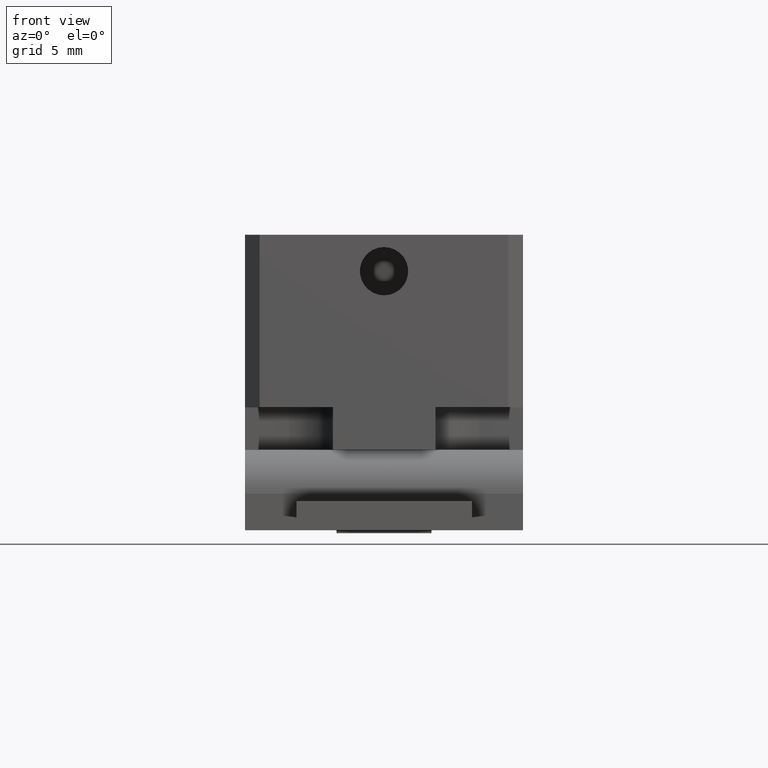
[diagram: clean part render]
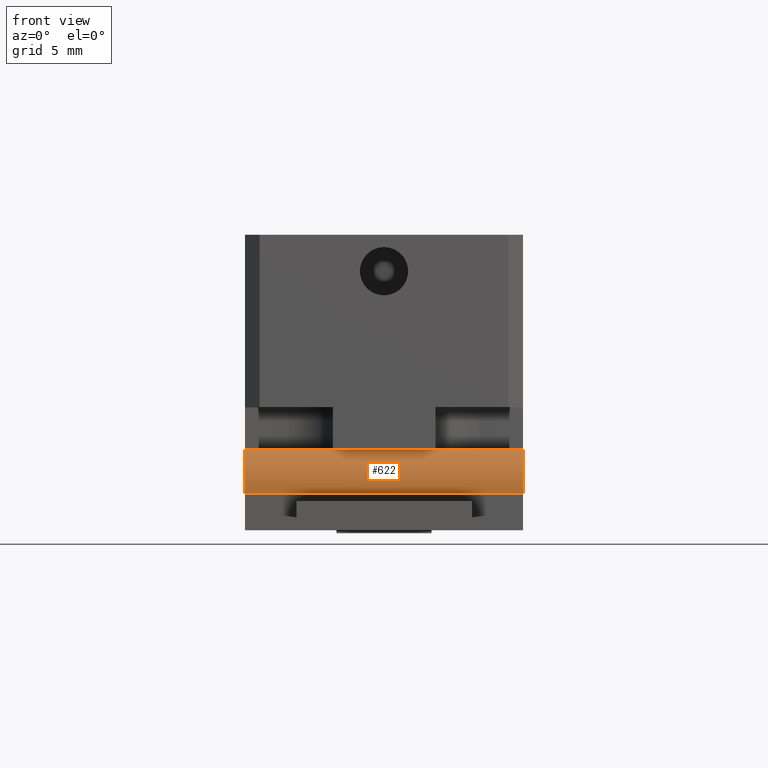
[diagram: same view with one face highlighted and labeled with its STEP entity id]
A machine part, front view. The second image highlights one B-rep face of the part: STEP entity #622.
In plain terms, the highlighted cylindrical surface (partial cylindrical patch) has radius 3 mm, axis along (-1, 0, -0).
Its self-contained STEP definition (entity closure, byte-faithful):
#321 = CIRCLE ( 'NONE', #4031, 2.999999999999999100 ) ;
#354 = VERTEX_POINT ( 'NONE', #2172 ) ;
#357 = CARTESIAN_POINT ( 'NONE',  ( 4.593946590009585900, -10.54697329500457300, 19.70000000000000600 ) ) ;
#362 = EDGE_CURVE ( 'NONE', #4016, #354, #2501, .T. ) ;
#517 = CARTESIAN_POINT ( 'NONE',  ( -14.40605340999041500, -10.54697329500457300, 19.70000000000000600 ) ) ;
#533 = FACE_OUTER_BOUND ( 'NONE', #1401, .T. ) ;
#622 = ADVANCED_FACE ( 'NONE', ( #533 ), #2202, .T. ) ;
#671 = DIRECTION ( 'NONE',  ( -2.891205793294678300E-016, 1.000000000000000000, 0.0000000000000000000 ) ) ;
#760 = DIRECTION ( 'NONE',  ( 0.0000000000000000000, 0.0000000000000000000, 1.000000000000000000 ) ) ;
#840 = DIRECTION ( 'NONE',  ( 0.0000000000000000000, 0.0000000000000000000, -1.000000000000000000 ) ) ;
#876 = CARTESIAN_POINT ( 'NONE',  ( 4.593946590009585900, -10.54697329500457300, 22.70000000000000600 ) ) ;
#1157 = DIRECTION ( 'NONE',  ( -1.000000000000000000, 0.0000000000000000000, -0.0000000000000000000 ) ) ;
#1401 = EDGE_LOOP ( 'NONE', ( #1679, #3311, #1789, #3804 ) ) ;
#1466 = AXIS2_PLACEMENT_3D ( 'NONE', #2434, #2767, #760 ) ;
#1679 = ORIENTED_EDGE ( 'NONE', *, *, #1951, .F. ) ;
#1765 = EDGE_CURVE ( 'NONE', #1905, #4085, #4026, .T. ) ;
#1789 = ORIENTED_EDGE ( 'NONE', *, *, #3500, .F. ) ;
#1869 = CARTESIAN_POINT ( 'NONE',  ( 4.593946590009585900, -10.54697329500457300, 22.70000000000000600 ) ) ;
#1905 = VERTEX_POINT ( 'NONE', #3454 ) ;
#1951 = EDGE_CURVE ( 'NONE', #354, #1905, #321, .T. ) ;
#2172 = CARTESIAN_POINT ( 'NONE',  ( -14.40605340999041500, -13.54697329500457300, 19.70000000000000600 ) ) ;
#2202 = CYLINDRICAL_SURFACE ( 'NONE', #1466, 2.999999999999999100 ) ;
#2207 = DIRECTION ( 'NONE',  ( 1.000000000000000000, -0.0000000000000000000, 0.0000000000000000000 ) ) ;
#2286 = VECTOR ( 'NONE', #2207, 1000.000000000000000 ) ;
#2389 = CIRCLE ( 'NONE', #3542, 3.000000000000000000 ) ;
#2434 = CARTESIAN_POINT ( 'NONE',  ( -4.906053409990408700, -10.54697329500457300, 19.70000000000000600 ) ) ;
#2501 = LINE ( 'NONE', #2833, #4152 ) ;
#2676 = DIRECTION ( 'NONE',  ( 1.000000000000000000, 2.891205793294677800E-016, -0.0000000000000000000 ) ) ;
#2767 = DIRECTION ( 'NONE',  ( -1.000000000000000000, 0.0000000000000000000, -0.0000000000000000000 ) ) ;
#2833 = CARTESIAN_POINT ( 'NONE',  ( -14.40605340999041500, -13.54697329500457300, 19.70000000000000600 ) ) ;
#2843 = DIRECTION ( 'NONE',  ( -1.000000000000000000, -0.0000000000000000000, 0.0000000000000000000 ) ) ;
#3311 = ORIENTED_EDGE ( 'NONE', *, *, #362, .F. ) ;
#3454 = CARTESIAN_POINT ( 'NONE',  ( -14.40605340999041500, -10.54697329500457300, 22.70000000000000600 ) ) ;
#3500 = EDGE_CURVE ( 'NONE', #4085, #4016, #2389, .T. ) ;
#3542 = AXIS2_PLACEMENT_3D ( 'NONE', #357, #2676, #671 ) ;
#3804 = ORIENTED_EDGE ( 'NONE', *, *, #1765, .F. ) ;
#3806 = CARTESIAN_POINT ( 'NONE',  ( 4.593946590009585900, -13.54697329500457300, 19.70000000000000600 ) ) ;
#4016 = VERTEX_POINT ( 'NONE', #3806 ) ;
#4026 = LINE ( 'NONE', #1869, #2286 ) ;
#4031 = AXIS2_PLACEMENT_3D ( 'NONE', #517, #2843, #840 ) ;
#4085 = VERTEX_POINT ( 'NONE', #876 ) ;
#4152 = VECTOR ( 'NONE', #1157, 1000.000000000000000 ) ;